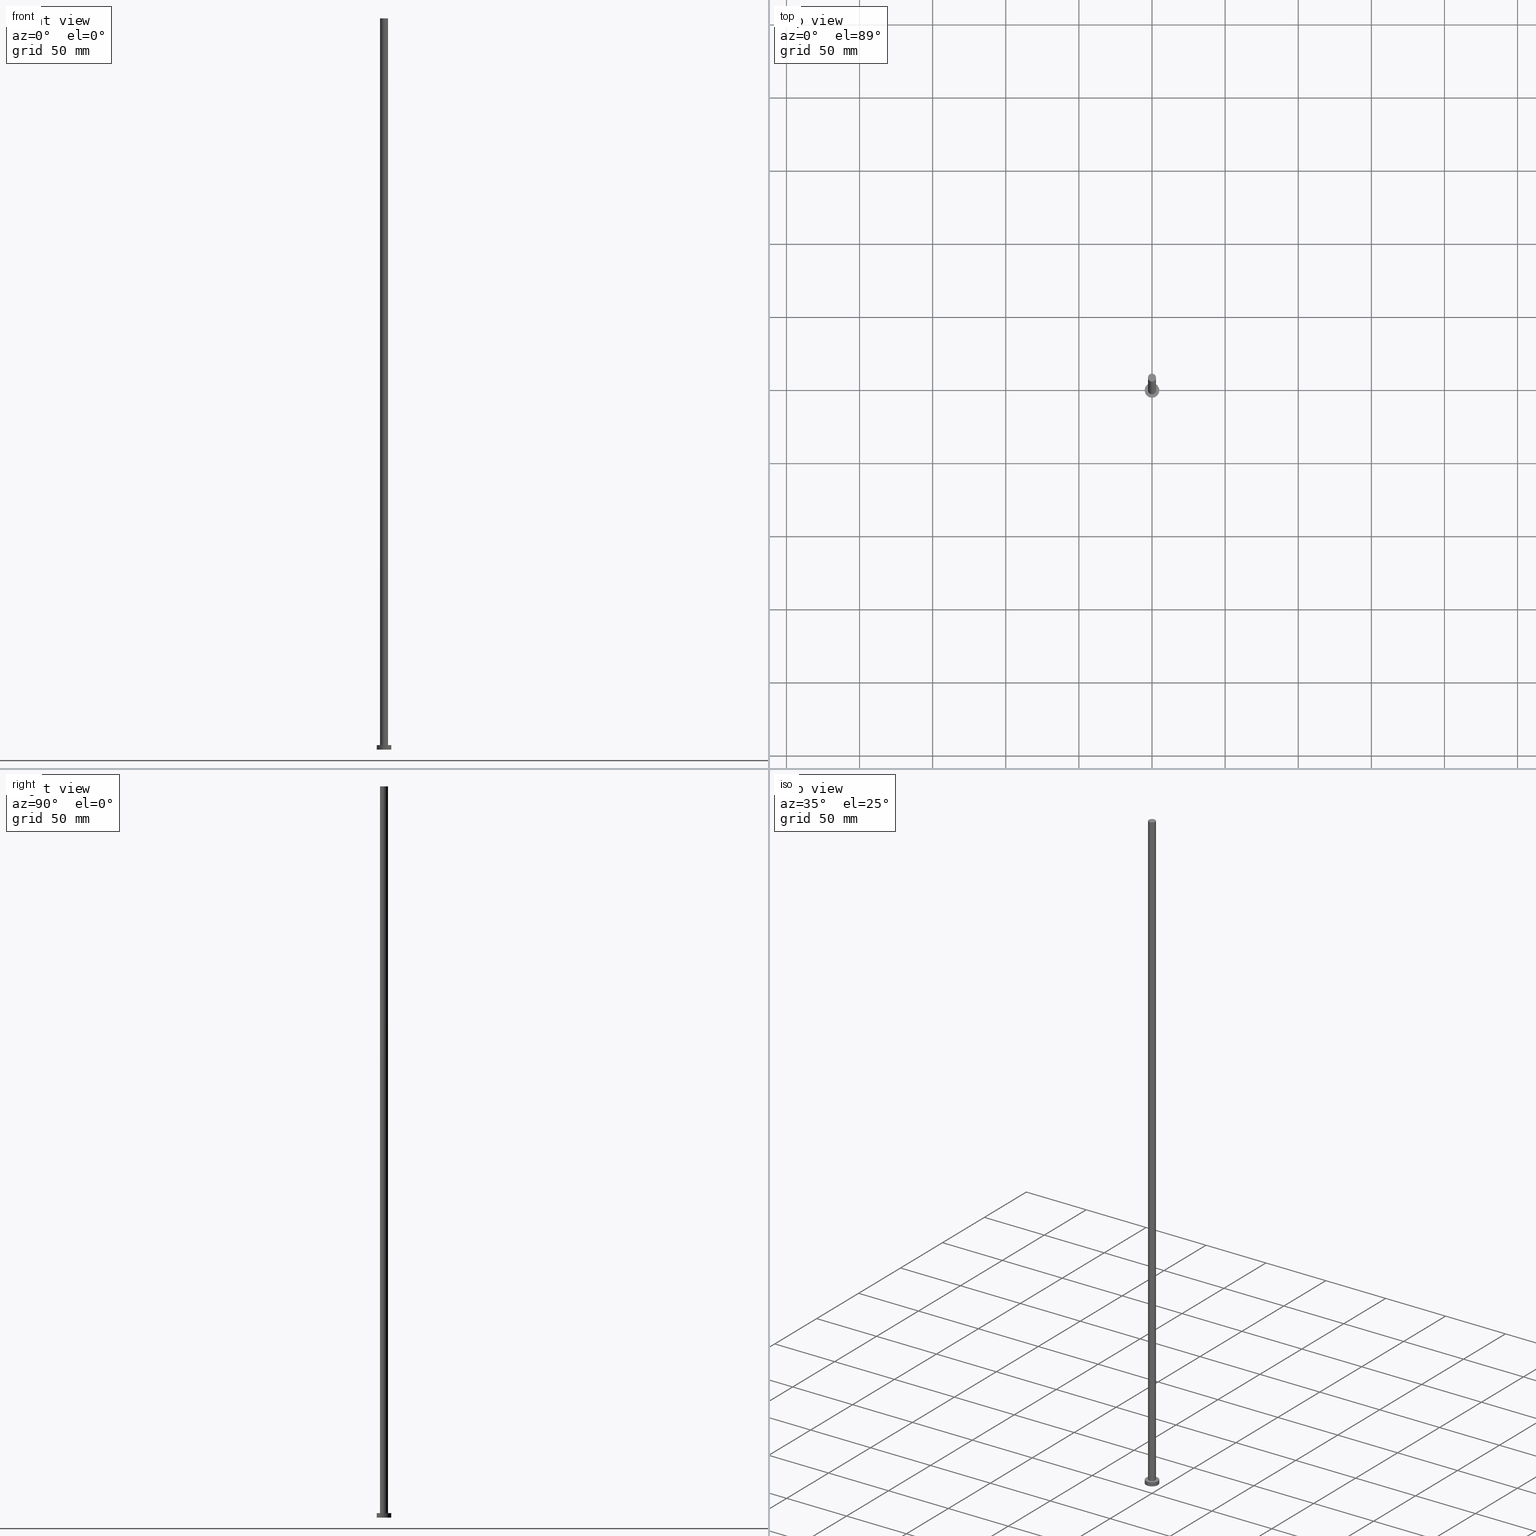
[diagram: canonical four-view strip — front | top / right | iso, engineering-drawing reading convention]
A machine part, canonical four-view strip (front | top / right | iso — engineering-drawing reading convention). The complete STEP part file that produces these views, byte-faithful:
ISO-10303-21;
HEADER;
FILE_DESCRIPTION (( 'STEP AP203' ),
    '1' );
FILE_NAME ('2130.STEP',
    '2026-02-06T12:40:48',
    ( '' ),
    ( '' ),
    'SwSTEP 2.0',
    'SolidWorks 2019',
    '' );
FILE_SCHEMA (( 'CONFIG_CONTROL_DESIGN' ));
ENDSEC;

DATA;
#1 = CYLINDRICAL_SURFACE ( 'NONE', #105, 2.750000000000000000 ) ;
#2 =( LENGTH_UNIT ( ) NAMED_UNIT ( * ) SI_UNIT ( .MILLI., .METRE. ) );
#3 = FACE_OUTER_BOUND ( 'NONE', #156, .T. ) ;
#4 = DIRECTION ( 'NONE',  ( -0.000000000000000000, -0.000000000000000000, -1.000000000000000000 ) ) ;
#5 = CARTESIAN_POINT ( 'NONE',  ( -2.750000000000000000, 0.000000000000000000, 500.0000000000000000 ) ) ;
#6 = VERTEX_POINT ( 'NONE', #219 ) ;
#7 = ORIENTED_EDGE ( 'NONE', *, *, #172, .T. ) ;
#8 = VERTEX_POINT ( 'NONE', #139 ) ;
#9 = CIRCLE ( 'NONE', #60, 2.750000000000000000 ) ;
#10 = DIRECTION ( 'NONE',  ( -1.000000000000000000, 0.000000000000000000, 0.000000000000000000 ) ) ;
#11 = EDGE_CURVE ( 'NONE', #8, #245, #243, .T. ) ;
#12 = DIRECTION ( 'NONE',  ( 1.000000000000000000, 0.000000000000000000, 0.000000000000000000 ) ) ;
#13 =( NAMED_UNIT ( * ) PLANE_ANGLE_UNIT ( ) SI_UNIT ( $, .RADIAN. ) );
#14 = PERSON_AND_ORGANIZATION ( #124, #22 ) ;
#15 = CARTESIAN_POINT ( 'NONE',  ( 0.000000000000000000, 0.000000000000000000, 0.000000000000000000 ) ) ;
#16 = ADVANCED_FACE ( 'NONE', ( #3 ), #98, .T. ) ;
#17 = ADVANCED_FACE ( 'NONE', ( #73 ), #75, .T. ) ;
#18 = ORIENTED_EDGE ( 'NONE', *, *, #248, .F. ) ;
#19 = VERTEX_POINT ( 'NONE', #56 ) ;
#20 = DIRECTION ( 'NONE',  ( 0.000000000000000000, 0.000000000000000000, 1.000000000000000000 ) ) ;
#21 = ORIENTED_EDGE ( 'NONE', *, *, #190, .F. ) ;
#22 = ORGANIZATION ( 'NEUR�EN�', 'NEUR�EN�', '' ) ;
#23 = LINE ( 'NONE', #100, #160 ) ;
#24 = CARTESIAN_POINT ( 'NONE',  ( 0.000000000000000000, 0.000000000000000000, 500.0000000000000000 ) ) ;
#25 = APPROVAL_PERSON_ORGANIZATION ( #113, #162, #107 ) ;
#26 = LINE ( 'NONE', #62, #95 ) ;
#27 = DIRECTION ( 'NONE',  ( -0.000000000000000000, -0.000000000000000000, -1.000000000000000000 ) ) ;
#28 = AXIS2_PLACEMENT_3D ( 'NONE', #176, #4, #42 ) ;
#29 = PERSON_AND_ORGANIZATION ( #124, #22 ) ;
#30 = PERSON_AND_ORGANIZATION ( #124, #22 ) ;
#31 = DIRECTION ( 'NONE',  ( 0.000000000000000000, 0.000000000000000000, 1.000000000000000000 ) ) ;
#32 = PERSON_AND_ORGANIZATION_ROLE ( 'creator' ) ;
#33 = CARTESIAN_POINT ( 'NONE',  ( 0.000000000000000000, 0.000000000000000000, 500.0000000000000000 ) ) ;
#34 = DATE_AND_TIME ( #194, #227 ) ;
#35 = MANIFOLD_SOLID_BREP ( 'P�idat vysunut�m3', #209 ) ;
#36 = EDGE_CURVE ( 'NONE', #134, #119, #9, .T. ) ;
#37 = SECURITY_CLASSIFICATION_LEVEL ( 'unclassified' ) ;
#38 = ORIENTED_EDGE ( 'NONE', *, *, #36, .T. ) ;
#39 = EDGE_LOOP ( 'NONE', ( #18, #193, #53, #80 ) ) ;
#40 = VECTOR ( 'NONE', #55, 1000.000000000000000 ) ;
#41 = ORIENTED_EDGE ( 'NONE', *, *, #222, .T. ) ;
#42 = DIRECTION ( 'NONE',  ( -1.000000000000000000, 0.000000000000000000, 0.000000000000000000 ) ) ;
#43 = CC_DESIGN_DATE_AND_TIME_ASSIGNMENT ( #65, #88, ( #78 ) ) ;
#44 = CARTESIAN_POINT ( 'NONE',  ( 0.000000000000000000, 0.000000000000000000, 3.000000000000000000 ) ) ;
#45 = FACE_OUTER_BOUND ( 'NONE', #81, .T. ) ;
#46 = APPROVAL_DATE_TIME ( #147, #161 ) ;
#47 = PERSON_AND_ORGANIZATION_ROLE ( 'design_owner' ) ;
#48 = DIRECTION ( 'NONE',  ( 0.000000000000000000, 0.000000000000000000, 1.000000000000000000 ) ) ;
#49 = APPROVAL_STATUS ( 'not_yet_approved' ) ;
#50 = APPROVAL_DATE_TIME ( #149, #250 ) ;
#51 = LOCAL_TIME ( 13, 40, 48.00000000000000000, #237 ) ;
#52 = AXIS2_PLACEMENT_3D ( 'NONE', #150, #255, #130 ) ;
#53 = ORIENTED_EDGE ( 'NONE', *, *, #207, .T. ) ;
#54 = ORIENTED_EDGE ( 'NONE', *, *, #110, .T. ) ;
#55 = DIRECTION ( 'NONE',  ( -0.000000000000000000, -0.000000000000000000, -1.000000000000000000 ) ) ;
#56 = CARTESIAN_POINT ( 'NONE',  ( -5.000000000000000000, 0.000000000000000000, 0.000000000000000000 ) ) ;
#57 = ORIENTED_EDGE ( 'NONE', *, *, #180, .F. ) ;
#58 = AXIS2_PLACEMENT_3D ( 'NONE', #24, #102, #10 ) ;
#59 = CC_DESIGN_APPROVAL ( #162, ( #203 ) ) ;
#60 = AXIS2_PLACEMENT_3D ( 'NONE', #136, #220, #146 ) ;
#61 = CC_DESIGN_APPROVAL ( #250, ( #78 ) ) ;
#62 = CARTESIAN_POINT ( 'NONE',  ( 2.750000000000000000, 3.367778697655220519E-16, 500.0000000000000000 ) ) ;
#63 = CARTESIAN_POINT ( 'NONE',  ( 2.750000000000000000, 3.367778697655220519E-16, 3.000000000000000000 ) ) ;
#64 = AXIS2_PLACEMENT_3D ( 'NONE', #154, #20, #244 ) ;
#65 = DATE_AND_TIME ( #145, #196 ) ;
#66 = COORDINATED_UNIVERSAL_TIME_OFFSET ( 1, 0, .AHEAD. ) ;
#67 = MECHANICAL_CONTEXT ( 'NONE', #226, 'mechanical' ) ;
#68 = AXIS2_PLACEMENT_3D ( 'NONE', #242, #79, #76 ) ;
#69 = DIRECTION ( 'NONE',  ( 1.000000000000000000, 0.000000000000000000, -0.000000000000000000 ) ) ;
#70 = CC_DESIGN_PERSON_AND_ORGANIZATION_ASSIGNMENT ( #29, #174, ( #72 ) ) ;
#71 = COORDINATED_UNIVERSAL_TIME_OFFSET ( 1, 0, .AHEAD. ) ;
#72 = PRODUCT_DEFINITION_FORMATION_WITH_SPECIFIED_SOURCE ( 'LIBOVOLN�', '', #192, .NOT_KNOWN. ) ;
#73 = FACE_OUTER_BOUND ( 'NONE', #179, .T. ) ;
#74 = DATE_AND_TIME ( #91, #216 ) ;
#75 = PLANE ( 'NONE',  #64 ) ;
#76 = DIRECTION ( 'NONE',  ( 1.000000000000000000, 0.000000000000000000, 0.000000000000000000 ) ) ;
#77 = ORIENTED_EDGE ( 'NONE', *, *, #248, .T. ) ;
#78 = PRODUCT_DEFINITION ( 'NEZN�M�', '', #72, #210 ) ;
#79 = DIRECTION ( 'NONE',  ( 0.000000000000000000, 0.000000000000000000, 1.000000000000000000 ) ) ;
#80 = ORIENTED_EDGE ( 'NONE', *, *, #222, .F. ) ;
#81 = EDGE_LOOP ( 'NONE', ( #7, #77 ) ) ;
#82 = CC_DESIGN_PERSON_AND_ORGANIZATION_ASSIGNMENT ( #14, #47, ( #192 ) ) ;
#83 = PRODUCT_RELATED_PRODUCT_CATEGORY ( 'detail', '', ( #192 ) ) ;
#84 = DIRECTION ( 'NONE',  ( -0.000000000000000000, -0.000000000000000000, -1.000000000000000000 ) ) ;
#85 = DIRECTION ( 'NONE',  ( 0.000000000000000000, 0.000000000000000000, 1.000000000000000000 ) ) ;
#86 = CIRCLE ( 'NONE', #125, 5.000000000000000000 ) ;
#87 = AXIS2_PLACEMENT_3D ( 'NONE', #228, #206, #123 ) ;
#88 = DATE_TIME_ROLE ( 'creation_date' ) ;
#89 = CYLINDRICAL_SURFACE ( 'NONE', #58, 2.750000000000000000 ) ;
#90 = ADVANCED_FACE ( 'NONE', ( #183 ), #1, .T. ) ;
#91 = CALENDAR_DATE ( 2026, 6, 2 ) ;
#92 = CARTESIAN_POINT ( 'NONE',  ( 5.000000000000000000, 6.123233995736766282E-16, 3.000000000000000000 ) ) ;
#93 = COORDINATED_UNIVERSAL_TIME_OFFSET ( 1, 0, .AHEAD. ) ;
#94 = AXIS2_PLACEMENT_3D ( 'NONE', #15, #48, #69 ) ;
#95 = VECTOR ( 'NONE', #249, 1000.000000000000000 ) ;
#96 = ORIENTED_EDGE ( 'NONE', *, *, #159, .T. ) ;
#97 = VERTEX_POINT ( 'NONE', #151 ) ;
#98 = CYLINDRICAL_SURFACE ( 'NONE', #28, 5.000000000000000000 ) ;
#99 = ORIENTED_EDGE ( 'NONE', *, *, #36, .F. ) ;
#100 = CARTESIAN_POINT ( 'NONE',  ( -5.000000000000000000, 0.000000000000000000, 3.000000000000000000 ) ) ;
#101 = AXIS2_PLACEMENT_3D ( 'NONE', #135, #155, #246 ) ;
#102 = DIRECTION ( 'NONE',  ( -0.000000000000000000, -0.000000000000000000, -1.000000000000000000 ) ) ;
#103 = APPROVAL_ROLE ( '' ) ;
#104 = DIRECTION ( 'NONE',  ( 1.000000000000000000, 0.000000000000000000, 0.000000000000000000 ) ) ;
#105 = AXIS2_PLACEMENT_3D ( 'NONE', #252, #84, #131 ) ;
#106 =( GEOMETRIC_REPRESENTATION_CONTEXT ( 3 ) GLOBAL_UNCERTAINTY_ASSIGNED_CONTEXT ( ( #157 ) ) GLOBAL_UNIT_ASSIGNED_CONTEXT ( ( #2, #13, #163 ) ) REPRESENTATION_CONTEXT ( 'NONE', 'WORKASPACE' ) );
#107 = APPROVAL_ROLE ( '' ) ;
#108 = COORDINATED_UNIVERSAL_TIME_OFFSET ( 1, 0, .AHEAD. ) ;
#109 = DIRECTION ( 'NONE',  ( 0.000000000000000000, 0.000000000000000000, 1.000000000000000000 ) ) ;
#110 = EDGE_CURVE ( 'NONE', #119, #134, #142, .T. ) ;
#111 = APPROVAL_DATE_TIME ( #74, #162 ) ;
#112 = ORIENTED_EDGE ( 'NONE', *, *, #225, .T. ) ;
#113 = PERSON_AND_ORGANIZATION ( #124, #22 ) ;
#114 = DIRECTION ( 'NONE',  ( -0.000000000000000000, -0.000000000000000000, -1.000000000000000000 ) ) ;
#115 = VECTOR ( 'NONE', #114, 1000.000000000000000 ) ;
#116 = CIRCLE ( 'NONE', #101, 5.000000000000000000 ) ;
#117 = ORIENTED_EDGE ( 'NONE', *, *, #229, .F. ) ;
#118 = ORIENTED_EDGE ( 'NONE', *, *, #229, .T. ) ;
#119 = VERTEX_POINT ( 'NONE', #235 ) ;
#120 = CC_DESIGN_PERSON_AND_ORGANIZATION_ASSIGNMENT ( #126, #211, ( #72 ) ) ;
#121 = CARTESIAN_POINT ( 'NONE',  ( 0.000000000000000000, 0.000000000000000000, 3.000000000000000000 ) ) ;
#122 = DIRECTION ( 'NONE',  ( 0.000000000000000000, 0.000000000000000000, 1.000000000000000000 ) ) ;
#123 = DIRECTION ( 'NONE',  ( 1.000000000000000000, 0.000000000000000000, 0.000000000000000000 ) ) ;
#124 = PERSON ( 'NEUR�EN�', 'NEUR�EN�', 'NEUR�EN�', ('NEUR�EN�'), ('NEUR�EN�'), ('NEUR�EN�') ) ;
#125 = AXIS2_PLACEMENT_3D ( 'NONE', #128, #31, #104 ) ;
#126 = PERSON_AND_ORGANIZATION ( #124, #22 ) ;
#127 = DIRECTION ( 'NONE',  ( 1.000000000000000000, 0.000000000000000000, 0.000000000000000000 ) ) ;
#128 = CARTESIAN_POINT ( 'NONE',  ( 0.000000000000000000, 0.000000000000000000, 0.000000000000000000 ) ) ;
#129 = PERSON_AND_ORGANIZATION ( #124, #22 ) ;
#130 = DIRECTION ( 'NONE',  ( 1.000000000000000000, 0.000000000000000000, 0.000000000000000000 ) ) ;
#131 = DIRECTION ( 'NONE',  ( -1.000000000000000000, 0.000000000000000000, 0.000000000000000000 ) ) ;
#132 = PERSON_AND_ORGANIZATION_ROLE ( 'classification_officer' ) ;
#133 = ORIENTED_EDGE ( 'NONE', *, *, #225, .F. ) ;
#134 = VERTEX_POINT ( 'NONE', #189 ) ;
#135 = CARTESIAN_POINT ( 'NONE',  ( 0.000000000000000000, 0.000000000000000000, 3.000000000000000000 ) ) ;
#136 = CARTESIAN_POINT ( 'NONE',  ( 0.000000000000000000, 0.000000000000000000, 500.0000000000000000 ) ) ;
#137 = CIRCLE ( 'NONE', #215, 2.750000000000000000 ) ;
#138 = ORIENTED_EDGE ( 'NONE', *, *, #110, .F. ) ;
#139 = CARTESIAN_POINT ( 'NONE',  ( 5.000000000000000000, 6.123233995736766282E-16, 3.000000000000000000 ) ) ;
#140 = CIRCLE ( 'NONE', #68, 2.750000000000000000 ) ;
#141 = DIRECTION ( 'NONE',  ( -1.000000000000000000, 0.000000000000000000, 0.000000000000000000 ) ) ;
#142 = CIRCLE ( 'NONE', #204, 2.750000000000000000 ) ;
#143 = CIRCLE ( 'NONE', #87, 5.000000000000000000 ) ;
#144 = ADVANCED_FACE ( 'NONE', ( #234 ), #233, .F. ) ;
#145 = CALENDAR_DATE ( 2026, 6, 2 ) ;
#146 = DIRECTION ( 'NONE',  ( 1.000000000000000000, 0.000000000000000000, 0.000000000000000000 ) ) ;
#147 = DATE_AND_TIME ( #169, #221 ) ;
#148 = CIRCLE ( 'NONE', #52, 5.000000000000000000 ) ;
#149 = DATE_AND_TIME ( #165, #51 ) ;
#150 = CARTESIAN_POINT ( 'NONE',  ( 0.000000000000000000, 0.000000000000000000, 3.000000000000000000 ) ) ;
#151 = CARTESIAN_POINT ( 'NONE',  ( -5.000000000000000000, 0.000000000000000000, 3.000000000000000000 ) ) ;
#152 = ORIENTED_EDGE ( 'NONE', *, *, #11, .F. ) ;
#153 = DIRECTION ( 'NONE',  ( -0.000000000000000000, -0.000000000000000000, -1.000000000000000000 ) ) ;
#154 = CARTESIAN_POINT ( 'NONE',  ( 0.000000000000000000, 0.000000000000000000, 500.0000000000000000 ) ) ;
#155 = DIRECTION ( 'NONE',  ( 0.000000000000000000, 0.000000000000000000, 1.000000000000000000 ) ) ;
#156 = EDGE_LOOP ( 'NONE', ( #152, #223, #41, #96 ) ) ;
#157 = UNCERTAINTY_MEASURE_WITH_UNIT (LENGTH_MEASURE( 1.000000000000000082E-05 ), #2, 'distance_accuracy_value', 'NONE');
#158 = AXIS2_PLACEMENT_3D ( 'NONE', #182, #239, #127 ) ;
#159 = EDGE_CURVE ( 'NONE', #19, #245, #86, .T. ) ;
#160 = VECTOR ( 'NONE', #153, 1000.000000000000000 ) ;
#161 = APPROVAL ( #232, 'NEUR�EN�' ) ;
#162 = APPROVAL ( #49, 'NEUR�EN�' ) ;
#163 =( NAMED_UNIT ( * ) SI_UNIT ( $, .STERADIAN. ) SOLID_ANGLE_UNIT ( ) );
#164 = DIRECTION ( 'NONE',  ( 1.000000000000000000, 0.000000000000000000, 0.000000000000000000 ) ) ;
#165 = CALENDAR_DATE ( 2026, 6, 2 ) ;
#166 = DIRECTION ( 'NONE',  ( 1.000000000000000000, 0.000000000000000000, -0.000000000000000000 ) ) ;
#167 = CC_DESIGN_SECURITY_CLASSIFICATION ( #203, ( #72 ) ) ;
#168 = ADVANCED_FACE ( 'NONE', ( #171, #45 ), #186, .T. ) ;
#169 = CALENDAR_DATE ( 2026, 6, 2 ) ;
#170 = APPROVAL_ROLE ( '' ) ;
#171 = FACE_BOUND ( 'NONE', #198, .T. ) ;
#172 = EDGE_CURVE ( 'NONE', #97, #8, #148, .T. ) ;
#173 = ADVANCED_FACE ( 'NONE', ( #188 ), #89, .T. ) ;
#174 = PERSON_AND_ORGANIZATION_ROLE ( 'design_supplier' ) ;
#175 = LINE ( 'NONE', #5, #40 ) ;
#176 = CARTESIAN_POINT ( 'NONE',  ( 0.000000000000000000, 0.000000000000000000, 3.000000000000000000 ) ) ;
#177 = VERTEX_POINT ( 'NONE', #63 ) ;
#178 = APPROVAL_PERSON_ORGANIZATION ( #129, #161, #103 ) ;
#179 = EDGE_LOOP ( 'NONE', ( #38, #54 ) ) ;
#180 = EDGE_CURVE ( 'NONE', #177, #6, #137, .T. ) ;
#181 = AXIS2_PLACEMENT_3D ( 'NONE', #44, #27, #141 ) ;
#182 = CARTESIAN_POINT ( 'NONE',  ( 0.000000000000000000, 0.000000000000000000, 0.000000000000000000 ) ) ;
#183 = FACE_OUTER_BOUND ( 'NONE', #202, .T. ) ;
#184 = APPROVAL_STATUS ( 'not_yet_approved' ) ;
#185 = ADVANCED_BREP_SHAPE_REPRESENTATION ( '2130', ( #35, #158 ), #106 ) ;
#186 = PLANE ( 'NONE',  #253 ) ;
#187 = APPLICATION_PROTOCOL_DEFINITION ( 'international standard', 'config_control_design', 1994, #226 ) ;
#188 = FACE_OUTER_BOUND ( 'NONE', #217, .T. ) ;
#189 = CARTESIAN_POINT ( 'NONE',  ( -2.750000000000000000, 0.000000000000000000, 500.0000000000000000 ) ) ;
#190 = EDGE_CURVE ( 'NONE', #119, #177, #26, .T. ) ;
#191 = SHAPE_DEFINITION_REPRESENTATION ( #213, #185 ) ;
#192 = PRODUCT ( '2130', '2130', '', ( #67 ) ) ;
#193 = ORIENTED_EDGE ( 'NONE', *, *, #11, .T. ) ;
#194 = CALENDAR_DATE ( 2026, 6, 2 ) ;
#195 = ORIENTED_EDGE ( 'NONE', *, *, #159, .F. ) ;
#196 = LOCAL_TIME ( 13, 40, 48.00000000000000000, #108 ) ;
#197 = EDGE_LOOP ( 'NONE', ( #195, #240 ) ) ;
#198 = EDGE_LOOP ( 'NONE', ( #117, #57 ) ) ;
#199 = CC_DESIGN_PERSON_AND_ORGANIZATION_ASSIGNMENT ( #214, #32, ( #78 ) ) ;
#200 = CC_DESIGN_PERSON_AND_ORGANIZATION_ASSIGNMENT ( #241, #132, ( #203 ) ) ;
#201 = APPLICATION_CONTEXT ( 'configuration controlled 3d designs of mechanical parts and assemblies' ) ;
#202 = EDGE_LOOP ( 'NONE', ( #21, #99, #112, #118 ) ) ;
#203 = SECURITY_CLASSIFICATION ( '', '', #37 ) ;
#204 = AXIS2_PLACEMENT_3D ( 'NONE', #33, #109, #164 ) ;
#205 = ADVANCED_FACE ( 'NONE', ( #251 ), #231, .T. ) ;
#206 = DIRECTION ( 'NONE',  ( 0.000000000000000000, 0.000000000000000000, 1.000000000000000000 ) ) ;
#207 = EDGE_CURVE ( 'NONE', #245, #19, #143, .T. ) ;
#208 = CC_DESIGN_DATE_AND_TIME_ASSIGNMENT ( #34, #236, ( #203 ) ) ;
#209 = CLOSED_SHELL ( 'NONE', ( #173, #205, #16, #168, #144, #90, #17 ) ) ;
#210 = DESIGN_CONTEXT ( 'detailed design', #201, 'design' ) ;
#211 = PERSON_AND_ORGANIZATION_ROLE ( 'creator' ) ;
#212 = APPLICATION_PROTOCOL_DEFINITION ( 'international standard', 'config_control_design', 1994, #201 ) ;
#213 = PRODUCT_DEFINITION_SHAPE ( 'NONE', 'NONE',  #78 ) ;
#214 = PERSON_AND_ORGANIZATION ( #124, #22 ) ;
#215 = AXIS2_PLACEMENT_3D ( 'NONE', #121, #122, #12 ) ;
#216 = LOCAL_TIME ( 13, 40, 48.00000000000000000, #93 ) ;
#217 = EDGE_LOOP ( 'NONE', ( #138, #224, #247, #133 ) ) ;
#218 = CARTESIAN_POINT ( 'NONE',  ( 5.000000000000000000, 6.123233995736766282E-16, 0.000000000000000000 ) ) ;
#219 = CARTESIAN_POINT ( 'NONE',  ( -2.750000000000000000, 0.000000000000000000, 3.000000000000000000 ) ) ;
#220 = DIRECTION ( 'NONE',  ( 0.000000000000000000, 0.000000000000000000, 1.000000000000000000 ) ) ;
#221 = LOCAL_TIME ( 13, 40, 48.00000000000000000, #66 ) ;
#222 = EDGE_CURVE ( 'NONE', #97, #19, #23, .T. ) ;
#223 = ORIENTED_EDGE ( 'NONE', *, *, #172, .F. ) ;
#224 = ORIENTED_EDGE ( 'NONE', *, *, #190, .T. ) ;
#225 = EDGE_CURVE ( 'NONE', #134, #6, #175, .T. ) ;
#226 = APPLICATION_CONTEXT ( 'configuration controlled 3d designs of mechanical parts and assemblies' ) ;
#227 = LOCAL_TIME ( 13, 40, 48.00000000000000000, #71 ) ;
#228 = CARTESIAN_POINT ( 'NONE',  ( 0.000000000000000000, 0.000000000000000000, 0.000000000000000000 ) ) ;
#229 = EDGE_CURVE ( 'NONE', #6, #177, #140, .T. ) ;
#230 = CC_DESIGN_APPROVAL ( #161, ( #72 ) ) ;
#231 = CYLINDRICAL_SURFACE ( 'NONE', #181, 5.000000000000000000 ) ;
#232 = APPROVAL_STATUS ( 'not_yet_approved' ) ;
#233 = PLANE ( 'NONE',  #94 ) ;
#234 = FACE_OUTER_BOUND ( 'NONE', #197, .T. ) ;
#235 = CARTESIAN_POINT ( 'NONE',  ( 2.750000000000000000, 3.367778697655220519E-16, 500.0000000000000000 ) ) ;
#236 = DATE_TIME_ROLE ( 'classification_date' ) ;
#237 = COORDINATED_UNIVERSAL_TIME_OFFSET ( 1, 0, .AHEAD. ) ;
#238 = CARTESIAN_POINT ( 'NONE',  ( 0.000000000000000000, 0.000000000000000000, 3.000000000000000000 ) ) ;
#239 = DIRECTION ( 'NONE',  ( 0.000000000000000000, 0.000000000000000000, 1.000000000000000000 ) ) ;
#240 = ORIENTED_EDGE ( 'NONE', *, *, #207, .F. ) ;
#241 = PERSON_AND_ORGANIZATION ( #124, #22 ) ;
#242 = CARTESIAN_POINT ( 'NONE',  ( 0.000000000000000000, 0.000000000000000000, 3.000000000000000000 ) ) ;
#243 = LINE ( 'NONE', #92, #115 ) ;
#244 = DIRECTION ( 'NONE',  ( 1.000000000000000000, 0.000000000000000000, -0.000000000000000000 ) ) ;
#245 = VERTEX_POINT ( 'NONE', #218 ) ;
#246 = DIRECTION ( 'NONE',  ( 1.000000000000000000, 0.000000000000000000, 0.000000000000000000 ) ) ;
#247 = ORIENTED_EDGE ( 'NONE', *, *, #180, .T. ) ;
#248 = EDGE_CURVE ( 'NONE', #8, #97, #116, .T. ) ;
#249 = DIRECTION ( 'NONE',  ( -0.000000000000000000, -0.000000000000000000, -1.000000000000000000 ) ) ;
#250 = APPROVAL ( #184, 'NEUR�EN�' ) ;
#251 = FACE_OUTER_BOUND ( 'NONE', #39, .T. ) ;
#252 = CARTESIAN_POINT ( 'NONE',  ( 0.000000000000000000, 0.000000000000000000, 500.0000000000000000 ) ) ;
#253 = AXIS2_PLACEMENT_3D ( 'NONE', #238, #85, #166 ) ;
#254 = APPROVAL_PERSON_ORGANIZATION ( #30, #250, #170 ) ;
#255 = DIRECTION ( 'NONE',  ( 0.000000000000000000, 0.000000000000000000, 1.000000000000000000 ) ) ;
ENDSEC;
END-ISO-10303-21;
